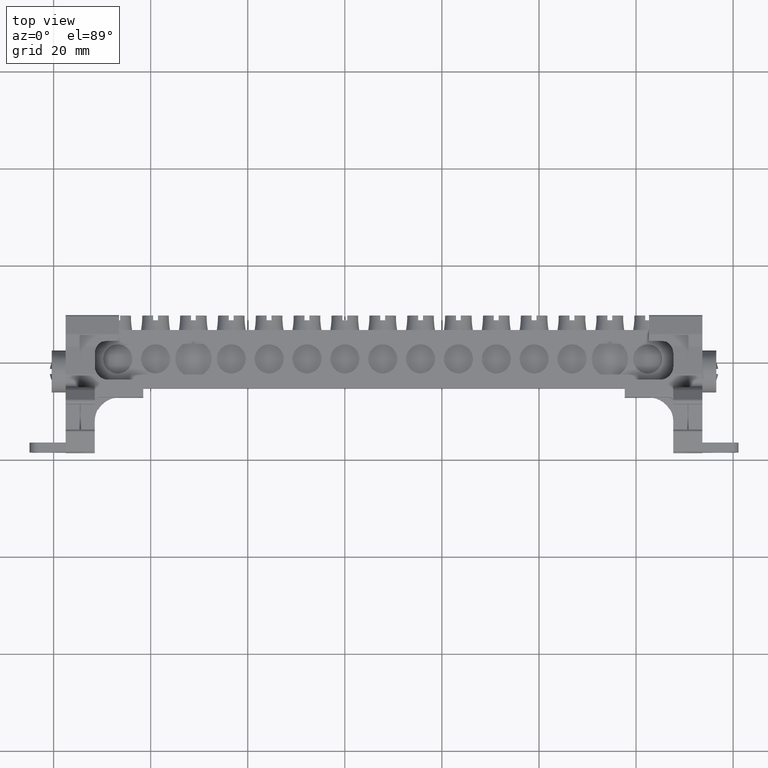
[diagram: clean part render]
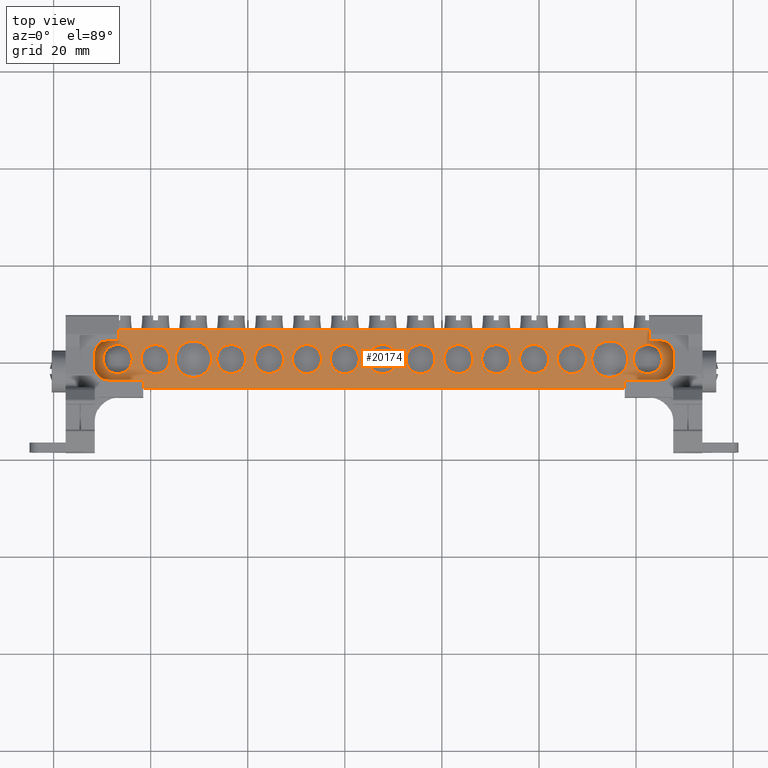
[diagram: same view with one face highlighted and labeled with its STEP entity id]
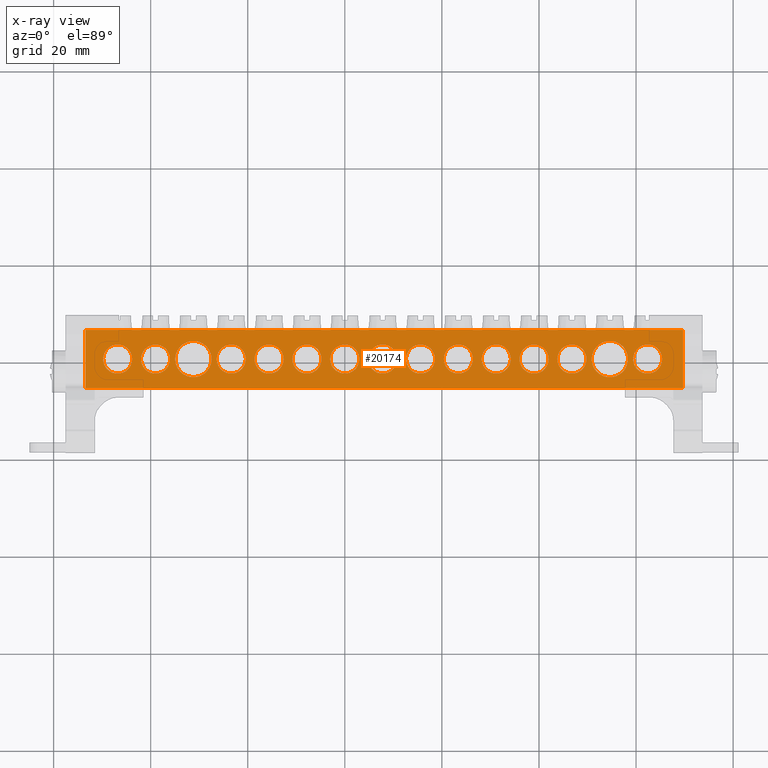
[diagram: x-ray of the same camera — body ghosted, the highlighted face saturated]
A machine part, top view. The second image highlights one B-rep face of the part: STEP entity #20174.
The next image is the same camera in x-ray: the body ghosted, the highlighted face saturated — about 0% of this face is hidden behind the body in this view.
In plain terms, the highlighted planar face has unit normal (0, 0, -1).
Its self-contained STEP definition (entity closure, byte-faithful):
#531 = DIRECTION ( 'NONE',  ( -1.000000000000000000, 0.0000000000000000000, 0.0000000000000000000 ) ) ;
#533 = DIRECTION ( 'NONE',  ( -1.000000000000000000, 0.0000000000000000000, 0.0000000000000000000 ) ) ;
#536 = DIRECTION ( 'NONE',  ( 0.0000000000000000000, 0.0000000000000000000, 1.000000000000000000 ) ) ;
#542 = DIRECTION ( 'NONE',  ( -1.000000000000000000, 0.0000000000000000000, 0.0000000000000000000 ) ) ;
#545 = CARTESIAN_POINT ( 'NONE',  ( -100.0053964936863900, -39.46391012921964900, 99.25723811290720300 ) ) ;
#550 = CARTESIAN_POINT ( 'NONE',  ( -107.8053964936864000, -39.46391012921964900, 99.25723811290720300 ) ) ;
#552 = DIRECTION ( 'NONE',  ( 0.0000000000000000000, 0.0000000000000000000, 1.000000000000000000 ) ) ;
#558 = DIRECTION ( 'NONE',  ( 0.0000000000000000000, 0.0000000000000000000, 1.000000000000000000 ) ) ;
#562 = CARTESIAN_POINT ( 'NONE',  ( -76.60539649368639900, -39.46391012921964900, 99.25723811290720300 ) ) ;
#622 = CARTESIAN_POINT ( 'NONE',  ( -92.20539649368639300, -39.46391012921964900, 99.25723811290720300 ) ) ;
#623 = DIRECTION ( 'NONE',  ( -1.000000000000000000, 0.0000000000000000000, 0.0000000000000000000 ) ) ;
#624 = CARTESIAN_POINT ( 'NONE',  ( -90.70539649368640800, -45.45958989762132100, 99.25723811290720300 ) ) ;
#627 = DIRECTION ( 'NONE',  ( 0.0000000000000000000, 0.0000000000000000000, 1.000000000000000000 ) ) ;
#629 = CARTESIAN_POINT ( 'NONE',  ( -84.40539649368642500, -39.46391012921964900, 99.25723811290720300 ) ) ;
#635 = LINE ( 'NONE', #624, #17459 ) ;
#636 = LINE ( 'NONE', #639, #16426 ) ;
#637 = DIRECTION ( 'NONE',  ( 0.0000000000000000000, 0.0000000000000000000, 1.000000000000000000 ) ) ;
#639 = CARTESIAN_POINT ( 'NONE',  ( -42.33039649368586100, -45.09798989761939900, 99.25723811290720300 ) ) ;
#646 = DIRECTION ( 'NONE',  ( -1.000000000000000000, 0.0000000000000000000, 0.0000000000000000000 ) ) ;
#648 = DIRECTION ( 'NONE',  ( -1.000000000000000000, 0.0000000000000000000, -0.0000000000000000000 ) ) ;
#651 = DIRECTION ( 'NONE',  ( 0.0000000000000000000, 0.0000000000000000000, 1.000000000000000000 ) ) ;
#652 = LINE ( 'NONE', #674, #16445 ) ;
#657 = DIRECTION ( 'NONE',  ( 0.0000000000000000000, 0.0000000000000000000, 1.000000000000000000 ) ) ;
#663 = DIRECTION ( 'NONE',  ( 0.0000000000000000000, 1.000000000000000000, 0.0000000000000000000 ) ) ;
#668 = DIRECTION ( 'NONE',  ( 1.000000000000000000, 0.0000000000000000000, 0.0000000000000000000 ) ) ;
#670 = DIRECTION ( 'NONE',  ( 1.100161628464490100E-014, -1.000000000000000000, 0.0000000000000000000 ) ) ;
#673 = CARTESIAN_POINT ( 'NONE',  ( -45.40539649368639600, -39.46391012921964900, 99.25723811290720300 ) ) ;
#674 = CARTESIAN_POINT ( 'NONE',  ( -153.4553964936864100, -33.46391012921964900, 99.25723811290720300 ) ) ;
#680 = CARTESIAN_POINT ( 'NONE',  ( -53.20539649368640100, -39.46391012921964900, 99.25723811290720300 ) ) ;
#687 = DIRECTION ( 'NONE',  ( 1.000000000000000000, 0.0000000000000000000, 0.0000000000000000000 ) ) ;
#702 = DIRECTION ( 'NONE',  ( 0.0000000000000000000, 0.0000000000000000000, 1.000000000000000000 ) ) ;
#705 = CARTESIAN_POINT ( 'NONE',  ( -139.0053964936863900, -39.46391012921964900, 99.25723811290720300 ) ) ;
#707 = DIRECTION ( 'NONE',  ( 1.000000000000000000, 0.0000000000000000000, 0.0000000000000000000 ) ) ;
#1647 = LINE ( 'NONE', #1648, #17377 ) ;
#1648 = CARTESIAN_POINT ( 'NONE',  ( -141.5303964936866000, -45.09798989762050100, 99.25723811290720300 ) ) ;
#1677 = DIRECTION ( 'NONE',  ( -1.123605221868002000E-014, 1.000000000000000000, 0.0000000000000000000 ) ) ;
#1687 = DIRECTION ( 'NONE',  ( 0.0000000000000000000, 0.0000000000000000000, 1.000000000000000000 ) ) ;
#1701 = CARTESIAN_POINT ( 'NONE',  ( -100.0053964936863900, -39.46391012921964900, 99.25723811290720300 ) ) ;
#1702 = DIRECTION ( 'NONE',  ( -1.000000000000000000, 0.0000000000000000000, 0.0000000000000000000 ) ) ;
#1715 = DIRECTION ( 'NONE',  ( 0.0000000000000000000, 0.0000000000000000000, 1.000000000000000000 ) ) ;
#1725 = CARTESIAN_POINT ( 'NONE',  ( -107.8053964936864000, -39.46391012921964900, 99.25723811290720300 ) ) ;
#1733 = DIRECTION ( 'NONE',  ( 0.0000000000000000000, 0.0000000000000000000, 1.000000000000000000 ) ) ;
#1736 = DIRECTION ( 'NONE',  ( -1.000000000000000000, 0.0000000000000000000, 0.0000000000000000000 ) ) ;
#1747 = CARTESIAN_POINT ( 'NONE',  ( -76.60539649368639900, -39.46391012921964900, 99.25723811290720300 ) ) ;
#1748 = DIRECTION ( 'NONE',  ( 0.0000000000000000000, 0.0000000000000000000, 1.000000000000000000 ) ) ;
#1750 = DIRECTION ( 'NONE',  ( -1.000000000000000000, 0.0000000000000000000, 0.0000000000000000000 ) ) ;
#1752 = CARTESIAN_POINT ( 'NONE',  ( -53.20539649368640100, -39.46391012921964900, 99.25723811290720300 ) ) ;
#1770 = DIRECTION ( 'NONE',  ( 0.0000000000000000000, 0.0000000000000000000, 1.000000000000000000 ) ) ;
#1775 = CARTESIAN_POINT ( 'NONE',  ( -37.60539649368644200, -39.46391012921964900, 99.25723811290720300 ) ) ;
#1780 = DIRECTION ( 'NONE',  ( 1.000000000000000000, 0.0000000000000000000, 0.0000000000000000000 ) ) ;
#1782 = DIRECTION ( 'NONE',  ( 1.000000000000000000, 0.0000000000000000000, 0.0000000000000000000 ) ) ;
#1786 = DIRECTION ( 'NONE',  ( 0.0000000000000000000, 0.0000000000000000000, 1.000000000000000000 ) ) ;
#1802 = DIRECTION ( 'NONE',  ( 0.0000000000000000000, 0.0000000000000000000, 1.000000000000000000 ) ) ;
#1816 = CARTESIAN_POINT ( 'NONE',  ( -84.40539649368642500, -39.46391012921964900, 99.25723811290720300 ) ) ;
#1818 = DIRECTION ( 'NONE',  ( -1.000000000000000000, 0.0000000000000000000, 0.0000000000000000000 ) ) ;
#1839 = DIRECTION ( 'NONE',  ( 1.000000000000000000, 0.0000000000000000000, 0.0000000000000000000 ) ) ;
#1850 = DIRECTION ( 'NONE',  ( -1.000000000000000000, 0.0000000000000000000, 0.0000000000000000000 ) ) ;
#1858 = DIRECTION ( 'NONE',  ( 0.0000000000000000000, 0.0000000000000000000, 1.000000000000000000 ) ) ;
#1859 = CARTESIAN_POINT ( 'NONE',  ( -45.40539649368639600, -39.46391012921964900, 99.25723811290720300 ) ) ;
#1866 = DIRECTION ( 'NONE',  ( 0.0000000000000000000, 0.0000000000000000000, 1.000000000000000000 ) ) ;
#1871 = CARTESIAN_POINT ( 'NONE',  ( -115.6053964936864000, -39.46391012921964900, 99.25723811290720300 ) ) ;
#2739 = DIRECTION ( 'NONE',  ( 0.0000000000000000000, 0.0000000000000000000, 1.000000000000000000 ) ) ;
#2740 = DIRECTION ( 'NONE',  ( 1.000000000000000000, 0.0000000000000000000, 0.0000000000000000000 ) ) ;
#2745 = CARTESIAN_POINT ( 'NONE',  ( -146.8053964936864300, -39.46391012921964900, 99.25723811290720300 ) ) ;
#3063 = CARTESIAN_POINT ( 'NONE',  ( -146.8053964936864300, -39.46391012921964900, 99.25723811290720300 ) ) ;
#3072 = CARTESIAN_POINT ( 'NONE',  ( -90.70539649368640800, -45.45958989762008400, 99.25723811290720300 ) ) ;
#3074 = CARTESIAN_POINT ( 'NONE',  ( -61.00539649368639800, -39.46391012921964900, 99.25723811290720300 ) ) ;
#3076 = DIRECTION ( 'NONE',  ( 0.0000000000000000000, 0.0000000000000000000, 1.000000000000000000 ) ) ;
#3077 = DIRECTION ( 'NONE',  ( -1.000000000000000000, 0.0000000000000000000, 0.0000000000000000000 ) ) ;
#3082 = LINE ( 'NONE', #3072, #25649 ) ;
#3086 = DIRECTION ( 'NONE',  ( 1.000000000000000000, 0.0000000000000000000, 0.0000000000000000000 ) ) ;
#3095 = DIRECTION ( 'NONE',  ( 0.0000000000000000000, 0.0000000000000000000, 1.000000000000000000 ) ) ;
#3098 = DIRECTION ( 'NONE',  ( -1.000000000000000000, 0.0000000000000000000, -0.0000000000000000000 ) ) ;
#3118 = CARTESIAN_POINT ( 'NONE',  ( -90.70539649368640800, -33.46391012921964900, 99.25723811290720300 ) ) ;
#3132 = DIRECTION ( 'NONE',  ( 1.000000000000000000, -0.0000000000000000000, 0.0000000000000000000 ) ) ;
#3136 = LINE ( 'NONE', #3118, #25153 ) ;
#3149 = CARTESIAN_POINT ( 'NONE',  ( -30.30539649368639500, -33.46391012921964900, 99.25723811290720300 ) ) ;
#3158 = CARTESIAN_POINT ( 'NONE',  ( -37.60539649368644200, -39.46391012921964900, 99.25723811290720300 ) ) ;
#3159 = CARTESIAN_POINT ( 'NONE',  ( -131.2053964936864400, -39.46391012921964900, 99.25723811290720300 ) ) ;
#3168 = DIRECTION ( 'NONE',  ( 0.0000000000000000000, 0.0000000000000000000, 1.000000000000000000 ) ) ;
#3171 = DIRECTION ( 'NONE',  ( 1.000000000000000000, 0.0000000000000000000, 0.0000000000000000000 ) ) ;
#3179 = DIRECTION ( 'NONE',  ( 0.0000000000000000000, 0.0000000000000000000, 1.000000000000000000 ) ) ;
#3180 = DIRECTION ( 'NONE',  ( 1.000000000000000000, 0.0000000000000000000, 0.0000000000000000000 ) ) ;
#3188 = LINE ( 'NONE', #3149, #25138 ) ;
#3221 = DIRECTION ( 'NONE',  ( -1.000000000000000000, 0.0000000000000000000, 0.0000000000000000000 ) ) ;
#3225 = CARTESIAN_POINT ( 'NONE',  ( -68.80539649368640200, -39.46391012921964900, 99.25723811290720300 ) ) ;
#3236 = DIRECTION ( 'NONE',  ( 0.0000000000000000000, 0.0000000000000000000, 1.000000000000000000 ) ) ;
#3238 = DIRECTION ( 'NONE',  ( -0.0000000000000000000, -1.000000000000000000, -0.0000000000000000000 ) ) ;
#3244 = LINE ( 'NONE', #3267, #25176 ) ;
#3252 = DIRECTION ( 'NONE',  ( -1.000000000000000000, 0.0000000000000000000, -0.0000000000000000000 ) ) ;
#3267 = CARTESIAN_POINT ( 'NONE',  ( -90.70539649368640800, -45.46391012921959900, 99.25723811290720300 ) ) ;
#3426 = DIRECTION ( 'NONE',  ( 0.0000000000000000000, 0.0000000000000000000, 1.000000000000000000 ) ) ;
#3440 = DIRECTION ( 'NONE',  ( -1.000000000000000000, 0.0000000000000000000, 0.0000000000000000000 ) ) ;
#3441 = DIRECTION ( 'NONE',  ( 0.0000000000000000000, 0.0000000000000000000, 1.000000000000000000 ) ) ;
#3448 = CARTESIAN_POINT ( 'NONE',  ( -123.4053964936864000, -39.46391012921964900, 99.25723811290720300 ) ) ;
#3466 = CARTESIAN_POINT ( 'NONE',  ( -115.6053964936864000, -39.46391012921964900, 99.25723811290720300 ) ) ;
#3474 = DIRECTION ( 'NONE',  ( -1.000000000000000000, 0.0000000000000000000, 0.0000000000000000000 ) ) ;
#5758 = DIRECTION ( 'NONE',  ( 1.000000000000000000, 0.0000000000000000000, 0.0000000000000000000 ) ) ;
#5767 = DIRECTION ( 'NONE',  ( 1.000000000000000000, 0.0000000000000000000, 0.0000000000000000000 ) ) ;
#5768 = CARTESIAN_POINT ( 'NONE',  ( -131.2053964936864400, -39.46391012921964900, 99.25723811290720300 ) ) ;
#5769 = DIRECTION ( 'NONE',  ( 0.0000000000000000000, 0.0000000000000000000, 1.000000000000000000 ) ) ;
#5806 = DIRECTION ( 'NONE',  ( -1.000000000000000000, 0.0000000000000000000, 0.0000000000000000000 ) ) ;
#5822 = DIRECTION ( 'NONE',  ( 0.0000000000000000000, 0.0000000000000000000, 1.000000000000000000 ) ) ;
#5829 = CARTESIAN_POINT ( 'NONE',  ( -68.80539649368640200, -39.46391012921964900, 99.25723811290720300 ) ) ;
#5963 = FACE_BOUND ( 'NONE', #20440, .T. ) ;
#8258 = CARTESIAN_POINT ( 'NONE',  ( -153.4553964936864100, -45.45958989762142000, 99.25723811290720300 ) ) ;
#8262 = CARTESIAN_POINT ( 'NONE',  ( -141.5303964936866000, -45.45958989762131400, 99.25723811290720300 ) ) ;
#8271 = CARTESIAN_POINT ( 'NONE',  ( -153.4553964936864100, -33.46391012921964900, 99.25723811290720300 ) ) ;
#8272 = CARTESIAN_POINT ( 'NONE',  ( -42.33039649368585300, -45.45958989762020500, 99.25723811290720300 ) ) ;
#8275 = CARTESIAN_POINT ( 'NONE',  ( -42.33039649368586100, -45.46391012921959900, 99.25723811290720300 ) ) ;
#8277 = CARTESIAN_POINT ( 'NONE',  ( -30.30539649368639500, -45.45958989761987800, 99.25723811290720300 ) ) ;
#8283 = CARTESIAN_POINT ( 'NONE',  ( -141.5303964936866000, -45.46391012921959900, 99.25723811290720300 ) ) ;
#8291 = CARTESIAN_POINT ( 'NONE',  ( -30.30539649368639500, -33.46391012921964900, 99.25723811290720300 ) ) ;
#9510 = CARTESIAN_POINT ( 'NONE',  ( -139.0053964936863900, -39.46391012921964900, 99.25723811290720300 ) ) ;
#10473 = DIRECTION ( 'NONE',  ( -1.000000000000000000, 0.0000000000000000000, 0.0000000000000000000 ) ) ;
#10505 = DIRECTION ( 'NONE',  ( 0.0000000000000000000, 0.0000000000000000000, 1.000000000000000000 ) ) ;
#10509 = CARTESIAN_POINT ( 'NONE',  ( -92.20539649368639300, -39.46391012921964900, 99.25723811290720300 ) ) ;
#10525 = DIRECTION ( 'NONE',  ( -1.000000000000000000, 0.0000000000000000000, 0.0000000000000000000 ) ) ;
#10545 = DIRECTION ( 'NONE',  ( 0.0000000000000000000, 0.0000000000000000000, 1.000000000000000000 ) ) ;
#10548 = DIRECTION ( 'NONE',  ( 0.0000000000000000000, 0.0000000000000000000, 1.000000000000000000 ) ) ;
#10551 = DIRECTION ( 'NONE',  ( -1.000000000000000000, 0.0000000000000000000, 0.0000000000000000000 ) ) ;
#10557 = CARTESIAN_POINT ( 'NONE',  ( -61.00539649368639800, -39.46391012921964900, 99.25723811290720300 ) ) ;
#10560 = CARTESIAN_POINT ( 'NONE',  ( -123.4053964936864000, -39.46391012921964900, 99.25723811290720300 ) ) ;
#12166 = VERTEX_POINT ( 'NONE', #8271 ) ;
#12170 = VERTEX_POINT ( 'NONE', #8272 ) ;
#12180 = VERTEX_POINT ( 'NONE', #8283 ) ;
#12191 = VERTEX_POINT ( 'NONE', #8277 ) ;
#12202 = VERTEX_POINT ( 'NONE', #8258 ) ;
#12205 = VERTEX_POINT ( 'NONE', #8262 ) ;
#12206 = VERTEX_POINT ( 'NONE', #8275 ) ;
#12213 = VERTEX_POINT ( 'NONE', #8291 ) ;
#12681 = EDGE_CURVE ( 'NONE', #12191, #12170, #3082, .T. ) ;
#12687 = EDGE_CURVE ( 'NONE', #21313, #21290, #25656, .T. ) ;
#12690 = EDGE_CURVE ( 'NONE', #21335, #21356, #25670, .T. ) ;
#12705 = EDGE_CURVE ( 'NONE', #12166, #12213, #3136, .T. ) ;
#12708 = EDGE_CURVE ( 'NONE', #21334, #21331, #25126, .T. ) ;
#12714 = EDGE_CURVE ( 'NONE', #21291, #21338, #25147, .T. ) ;
#12722 = EDGE_CURVE ( 'NONE', #12213, #12191, #3188, .T. ) ;
#12730 = EDGE_CURVE ( 'NONE', #21293, #21323, #25151, .T. ) ;
#12743 = EDGE_CURVE ( 'NONE', #12206, #12180, #3244, .T. ) ;
#12769 = EDGE_CURVE ( 'NONE', #21250, #21252, #25201, .T. ) ;
#12772 = EDGE_CURVE ( 'NONE', #21337, #21285, #25209, .T. ) ;
#12937 = EDGE_CURVE ( 'NONE', #21346, #21276, #25369, .T. ) ;
#12950 = EDGE_CURVE ( 'NONE', #21252, #21250, #25413, .T. ) ;
#12952 = EDGE_CURVE ( 'NONE', #21356, #21335, #25470, .T. ) ;
#12957 = EDGE_CURVE ( 'NONE', #21288, #21289, #25438, .T. ) ;
#12961 = EDGE_CURVE ( 'NONE', #21266, #21294, #25445, .T. ) ;
#12972 = EDGE_CURVE ( 'NONE', #21331, #21334, #25454, .T. ) ;
#12978 = EDGE_CURVE ( 'NONE', #21299, #21296, #25425, .T. ) ;
#12980 = EDGE_CURVE ( 'NONE', #21282, #21232, #25428, .T. ) ;
#12993 = EDGE_CURVE ( 'NONE', #21265, #21243, #25537, .T. ) ;
#12996 = EDGE_CURVE ( 'NONE', #21285, #21337, #25522, .T. ) ;
#12999 = EDGE_CURVE ( 'NONE', #21301, #21315, #25491, .T. ) ;
#13100 = EDGE_CURVE ( 'NONE', #12180, #12205, #1647, .T. ) ;
#13134 = EDGE_CURVE ( 'NONE', #21232, #21282, #17409, .T. ) ;
#13135 = EDGE_CURVE ( 'NONE', #21289, #21288, #17385, .T. ) ;
#13138 = EDGE_CURVE ( 'NONE', #21294, #21266, #17413, .T. ) ;
#13167 = EDGE_CURVE ( 'NONE', #21243, #21265, #17425, .T. ) ;
#13168 = EDGE_CURVE ( 'NONE', #12205, #12202, #635, .T. ) ;
#13170 = EDGE_CURVE ( 'NONE', #21276, #21346, #17448, .T. ) ;
#13173 = EDGE_CURVE ( 'NONE', #21296, #21299, #17428, .T. ) ;
#13176 = EDGE_CURVE ( 'NONE', #12170, #12206, #636, .T. ) ;
#13179 = EDGE_CURVE ( 'NONE', #21315, #21301, #16440, .T. ) ;
#13181 = EDGE_CURVE ( 'NONE', #12202, #12166, #652, .T. ) ;
#13188 = EDGE_CURVE ( 'NONE', #21339, #21317, #16418, .T. ) ;
#13641 = FACE_BOUND ( 'NONE', #20433, .T. ) ;
#13648 = FACE_BOUND ( 'NONE', #20498, .T. ) ;
#13651 = FACE_OUTER_BOUND ( 'NONE', #20494, .T. ) ;
#13654 = DIRECTION ( 'NONE',  ( 0.0000000000000000000, 0.0000000000000000000, -1.000000000000000000 ) ) ;
#13656 = FACE_BOUND ( 'NONE', #20442, .T. ) ;
#13657 = FACE_BOUND ( 'NONE', #20480, .T. ) ;
#13661 = FACE_BOUND ( 'NONE', #20513, .T. ) ;
#13663 = DIRECTION ( 'NONE',  ( -1.000000000000000000, 0.0000000000000000000, -0.0000000000000000000 ) ) ;
#13664 = FACE_BOUND ( 'NONE', #20492, .T. ) ;
#13665 = CARTESIAN_POINT ( 'NONE',  ( -90.70539649368640800, -33.46391012921964900, 99.25723811290720300 ) ) ;
#13667 = FACE_BOUND ( 'NONE', #20482, .T. ) ;
#13672 = PLANE ( 'NONE',  #26189 ) ;
#13674 = FACE_BOUND ( 'NONE', #20514, .T. ) ;
#13678 = FACE_BOUND ( 'NONE', #20501, .T. ) ;
#13681 = FACE_BOUND ( 'NONE', #20435, .T. ) ;
#13683 = FACE_BOUND ( 'NONE', #20523, .T. ) ;
#13691 = FACE_BOUND ( 'NONE', #20510, .T. ) ;
#14216 = CARTESIAN_POINT ( 'NONE',  ( -118.6053964936864000, -39.46391012921964900, 99.25723811290720300 ) ) ;
#14234 = CARTESIAN_POINT ( 'NONE',  ( -87.40539649368642500, -39.46391012921964900, 99.25723811290720300 ) ) ;
#14237 = CARTESIAN_POINT ( 'NONE',  ( -97.00539649368639100, -39.46391012921964900, 99.25723811290720300 ) ) ;
#14238 = CARTESIAN_POINT ( 'NONE',  ( -149.8053964936864300, -39.46391012921964900, 99.25723811290720300 ) ) ;
#14246 = CARTESIAN_POINT ( 'NONE',  ( -73.60539649368639900, -39.46391012921964900, 99.25723811290720300 ) ) ;
#14253 = CARTESIAN_POINT ( 'NONE',  ( -126.4053964936864000, -39.46391012921964900, 99.25723811290720300 ) ) ;
#14254 = CARTESIAN_POINT ( 'NONE',  ( -110.8053964936864200, -39.46391012921964900, 99.25723811290720300 ) ) ;
#14264 = CARTESIAN_POINT ( 'NONE',  ( -120.4053964936864000, -39.46391012921964900, 99.25723811290720300 ) ) ;
#14265 = CARTESIAN_POINT ( 'NONE',  ( -103.0053964936863900, -39.46391012921964900, 99.25723811290720300 ) ) ;
#14268 = CARTESIAN_POINT ( 'NONE',  ( -81.40539649368641100, -39.46391012921964900, 99.25723811290720300 ) ) ;
#14277 = CARTESIAN_POINT ( 'NONE',  ( -89.20539649368639300, -39.46391012921964900, 99.25723811290720300 ) ) ;
#14279 = CARTESIAN_POINT ( 'NONE',  ( -79.60539649368639900, -39.46391012921964900, 99.25723811290720300 ) ) ;
#14287 = CARTESIAN_POINT ( 'NONE',  ( -41.65539649368639600, -39.46391012921964900, 99.25723811290720300 ) ) ;
#14289 = CARTESIAN_POINT ( 'NONE',  ( -34.60539649368644200, -39.46391012921964900, 99.25723811290720300 ) ) ;
#14292 = CARTESIAN_POINT ( 'NONE',  ( -58.00539649368639800, -39.46391012921964900, 99.25723811290720300 ) ) ;
#14299 = CARTESIAN_POINT ( 'NONE',  ( -95.20539649368639300, -39.46391012921964900, 99.25723811290720300 ) ) ;
#14300 = CARTESIAN_POINT ( 'NONE',  ( -49.15539649368640300, -39.46391012921964900, 99.25723811290720300 ) ) ;
#14307 = CARTESIAN_POINT ( 'NONE',  ( -56.20539649368640100, -39.46391012921964900, 99.25723811290720300 ) ) ;
#14311 = CARTESIAN_POINT ( 'NONE',  ( -143.8053964936864300, -39.46391012921964900, 99.25723811290720300 ) ) ;
#14314 = CARTESIAN_POINT ( 'NONE',  ( -142.0053964936863900, -39.46391012921964900, 99.25723811290720300 ) ) ;
#14316 = CARTESIAN_POINT ( 'NONE',  ( -71.80539649368640200, -39.46391012921964900, 99.25723811290720300 ) ) ;
#14318 = CARTESIAN_POINT ( 'NONE',  ( -112.6053964936864000, -39.46391012921964900, 99.25723811290720300 ) ) ;
#14319 = CARTESIAN_POINT ( 'NONE',  ( -127.4553964936864200, -39.46391012921964900, 99.25723811290720300 ) ) ;
#14321 = CARTESIAN_POINT ( 'NONE',  ( -134.9553964936864400, -39.46391012921964900, 99.25723811290720300 ) ) ;
#14323 = CARTESIAN_POINT ( 'NONE',  ( -65.80539649368640200, -39.46391012921964900, 99.25723811290720300 ) ) ;
#14327 = CARTESIAN_POINT ( 'NONE',  ( -40.60539649368644900, -39.46391012921964900, 99.25723811290720300 ) ) ;
#14336 = CARTESIAN_POINT ( 'NONE',  ( -50.20539649368639300, -39.46391012921964900, 99.25723811290720300 ) ) ;
#14339 = CARTESIAN_POINT ( 'NONE',  ( -136.0053964936863900, -39.46391012921964900, 99.25723811290720300 ) ) ;
#14343 = CARTESIAN_POINT ( 'NONE',  ( -104.8053964936864000, -39.46391012921964900, 99.25723811290720300 ) ) ;
#14362 = CARTESIAN_POINT ( 'NONE',  ( -64.00539649368640500, -39.46391012921964900, 99.25723811290720300 ) ) ;
#16418 = CIRCLE ( 'NONE', #16453, 3.000000000000002700 ) ;
#16426 = VECTOR ( 'NONE', #670, 1000.000000000000000 ) ;
#16433 = AXIS2_PLACEMENT_3D ( 'NONE', #673, #657, #687 ) ;
#16440 = CIRCLE ( 'NONE', #16433, 3.750000000000003600 ) ;
#16445 = VECTOR ( 'NONE', #663, 1000.000000000000000 ) ;
#16453 = AXIS2_PLACEMENT_3D ( 'NONE', #705, #702, #707 ) ;
#17039 = CIRCLE ( 'NONE', #17066, 3.750000000000003600 ) ;
#17045 = AXIS2_PLACEMENT_3D ( 'NONE', #2745, #2739, #2740 ) ;
#17047 = CIRCLE ( 'NONE', #17045, 3.000000000000002700 ) ;
#17049 = CIRCLE ( 'NONE', #17056, 3.000000000000002700 ) ;
#17056 = AXIS2_PLACEMENT_3D ( 'NONE', #9510, #1687, #5767 ) ;
#17059 = CIRCLE ( 'NONE', #17073, 3.000000000000002700 ) ;
#17066 = AXIS2_PLACEMENT_3D ( 'NONE', #5768, #5769, #5758 ) ;
#17073 = AXIS2_PLACEMENT_3D ( 'NONE', #5829, #5822, #5806 ) ;
#17377 = VECTOR ( 'NONE', #1677, 1000.000000000000000 ) ;
#17385 = CIRCLE ( 'NONE', #17408, 3.000000000000002700 ) ;
#17391 = AXIS2_PLACEMENT_3D ( 'NONE', #562, #536, #542 ) ;
#17408 = AXIS2_PLACEMENT_3D ( 'NONE', #545, #552, #531 ) ;
#17409 = CIRCLE ( 'NONE', #17391, 3.000000000000002700 ) ;
#17413 = CIRCLE ( 'NONE', #17419, 3.000000000000002700 ) ;
#17419 = AXIS2_PLACEMENT_3D ( 'NONE', #550, #558, #533 ) ;
#17425 = CIRCLE ( 'NONE', #17464, 3.000000000000002700 ) ;
#17426 = AXIS2_PLACEMENT_3D ( 'NONE', #622, #627, #623 ) ;
#17428 = CIRCLE ( 'NONE', #17430, 3.000000000000002700 ) ;
#17430 = AXIS2_PLACEMENT_3D ( 'NONE', #680, #651, #668 ) ;
#17448 = CIRCLE ( 'NONE', #17426, 3.000000000000002700 ) ;
#17459 = VECTOR ( 'NONE', #648, 1000.000000000000000 ) ;
#17464 = AXIS2_PLACEMENT_3D ( 'NONE', #629, #637, #646 ) ;
#18143 = EDGE_CURVE ( 'NONE', #21290, #21313, #17047, .T. ) ;
#18152 = EDGE_CURVE ( 'NONE', #21317, #21339, #17049, .T. ) ;
#18165 = EDGE_CURVE ( 'NONE', #21338, #21291, #17039, .T. ) ;
#18210 = EDGE_CURVE ( 'NONE', #21323, #21293, #17059, .T. ) ;
#18749 = ORIENTED_EDGE ( 'NONE', *, *, #13170, .F. ) ;
#18750 = ORIENTED_EDGE ( 'NONE', *, *, #12708, .F. ) ;
#18751 = ORIENTED_EDGE ( 'NONE', *, *, #12999, .F. ) ;
#18752 = ORIENTED_EDGE ( 'NONE', *, *, #18143, .F. ) ;
#18753 = ORIENTED_EDGE ( 'NONE', *, *, #12950, .F. ) ;
#18756 = ORIENTED_EDGE ( 'NONE', *, *, #12972, .F. ) ;
#18760 = ORIENTED_EDGE ( 'NONE', *, *, #12957, .F. ) ;
#18761 = ORIENTED_EDGE ( 'NONE', *, *, #13100, .F. ) ;
#18762 = ORIENTED_EDGE ( 'NONE', *, *, #18210, .F. ) ;
#18763 = ORIENTED_EDGE ( 'NONE', *, *, #12772, .F. ) ;
#18765 = ORIENTED_EDGE ( 'NONE', *, *, #12996, .F. ) ;
#18768 = ORIENTED_EDGE ( 'NONE', *, *, #12769, .F. ) ;
#18769 = ORIENTED_EDGE ( 'NONE', *, *, #13138, .F. ) ;
#18771 = ORIENTED_EDGE ( 'NONE', *, *, #12993, .F. ) ;
#18772 = ORIENTED_EDGE ( 'NONE', *, *, #13134, .F. ) ;
#18773 = ORIENTED_EDGE ( 'NONE', *, *, #13167, .F. ) ;
#18777 = ORIENTED_EDGE ( 'NONE', *, *, #13135, .F. ) ;
#18780 = ORIENTED_EDGE ( 'NONE', *, *, #12980, .F. ) ;
#18782 = ORIENTED_EDGE ( 'NONE', *, *, #12978, .F. ) ;
#18785 = ORIENTED_EDGE ( 'NONE', *, *, #12952, .F. ) ;
#18788 = ORIENTED_EDGE ( 'NONE', *, *, #12961, .F. ) ;
#18794 = ORIENTED_EDGE ( 'NONE', *, *, #13173, .F. ) ;
#18796 = ORIENTED_EDGE ( 'NONE', *, *, #12937, .F. ) ;
#18798 = ORIENTED_EDGE ( 'NONE', *, *, #13179, .F. ) ;
#18801 = ORIENTED_EDGE ( 'NONE', *, *, #12687, .F. ) ;
#18805 = ORIENTED_EDGE ( 'NONE', *, *, #18165, .F. ) ;
#18813 = ORIENTED_EDGE ( 'NONE', *, *, #12681, .F. ) ;
#18823 = ORIENTED_EDGE ( 'NONE', *, *, #18152, .F. ) ;
#18826 = ORIENTED_EDGE ( 'NONE', *, *, #13176, .F. ) ;
#18827 = ORIENTED_EDGE ( 'NONE', *, *, #12743, .F. ) ;
#18831 = ORIENTED_EDGE ( 'NONE', *, *, #13168, .F. ) ;
#18833 = ORIENTED_EDGE ( 'NONE', *, *, #12714, .F. ) ;
#18844 = ORIENTED_EDGE ( 'NONE', *, *, #12730, .F. ) ;
#18852 = ORIENTED_EDGE ( 'NONE', *, *, #12705, .F. ) ;
#18853 = ORIENTED_EDGE ( 'NONE', *, *, #12722, .F. ) ;
#18854 = ORIENTED_EDGE ( 'NONE', *, *, #13181, .F. ) ;
#18857 = ORIENTED_EDGE ( 'NONE', *, *, #13188, .F. ) ;
#18859 = ORIENTED_EDGE ( 'NONE', *, *, #12690, .F. ) ;
#20174 = ADVANCED_FACE ( 'NONE', ( #24577, #24101, #5963, #13656, #13683, #13657, #13641, #13648, #13691, #13667, #13674, #13661, #13664, #13681, #13678, #13651 ), #13672, .F. ) ;
#20360 = EDGE_LOOP ( 'NONE', ( #18765, #18763 ) ) ;
#20433 = EDGE_LOOP ( 'NONE', ( #18780, #18772 ) ) ;
#20435 = EDGE_LOOP ( 'NONE', ( #18801, #18752 ) ) ;
#20440 = EDGE_LOOP ( 'NONE', ( #18788, #18769 ) ) ;
#20442 = EDGE_LOOP ( 'NONE', ( #18760, #18777 ) ) ;
#20480 = EDGE_LOOP ( 'NONE', ( #18771, #18773 ) ) ;
#20482 = EDGE_LOOP ( 'NONE', ( #18750, #18756 ) ) ;
#20492 = EDGE_LOOP ( 'NONE', ( #18857, #18823 ) ) ;
#20494 = EDGE_LOOP ( 'NONE', ( #18813, #18853, #18852, #18854, #18831, #18761, #18827, #18826 ) ) ;
#20498 = EDGE_LOOP ( 'NONE', ( #18794, #18782 ) ) ;
#20501 = EDGE_LOOP ( 'NONE', ( #18833, #18805 ) ) ;
#20510 = EDGE_LOOP ( 'NONE', ( #18798, #18751 ) ) ;
#20513 = EDGE_LOOP ( 'NONE', ( #18762, #18844 ) ) ;
#20514 = EDGE_LOOP ( 'NONE', ( #18785, #18859 ) ) ;
#20519 = EDGE_LOOP ( 'NONE', ( #18753, #18768 ) ) ;
#20523 = EDGE_LOOP ( 'NONE', ( #18796, #18749 ) ) ;
#21232 = VERTEX_POINT ( 'NONE', #14246 ) ;
#21243 = VERTEX_POINT ( 'NONE', #14268 ) ;
#21250 = VERTEX_POINT ( 'NONE', #14264 ) ;
#21252 = VERTEX_POINT ( 'NONE', #14253 ) ;
#21265 = VERTEX_POINT ( 'NONE', #14234 ) ;
#21266 = VERTEX_POINT ( 'NONE', #14254 ) ;
#21276 = VERTEX_POINT ( 'NONE', #14277 ) ;
#21282 = VERTEX_POINT ( 'NONE', #14279 ) ;
#21285 = VERTEX_POINT ( 'NONE', #14216 ) ;
#21288 = VERTEX_POINT ( 'NONE', #14265 ) ;
#21289 = VERTEX_POINT ( 'NONE', #14237 ) ;
#21290 = VERTEX_POINT ( 'NONE', #14238 ) ;
#21291 = VERTEX_POINT ( 'NONE', #14319 ) ;
#21293 = VERTEX_POINT ( 'NONE', #14323 ) ;
#21294 = VERTEX_POINT ( 'NONE', #14343 ) ;
#21296 = VERTEX_POINT ( 'NONE', #14336 ) ;
#21299 = VERTEX_POINT ( 'NONE', #14307 ) ;
#21301 = VERTEX_POINT ( 'NONE', #14300 ) ;
#21313 = VERTEX_POINT ( 'NONE', #14311 ) ;
#21315 = VERTEX_POINT ( 'NONE', #14287 ) ;
#21317 = VERTEX_POINT ( 'NONE', #14314 ) ;
#21323 = VERTEX_POINT ( 'NONE', #14316 ) ;
#21331 = VERTEX_POINT ( 'NONE', #14327 ) ;
#21334 = VERTEX_POINT ( 'NONE', #14289 ) ;
#21335 = VERTEX_POINT ( 'NONE', #14292 ) ;
#21337 = VERTEX_POINT ( 'NONE', #14318 ) ;
#21338 = VERTEX_POINT ( 'NONE', #14321 ) ;
#21339 = VERTEX_POINT ( 'NONE', #14339 ) ;
#21346 = VERTEX_POINT ( 'NONE', #14299 ) ;
#21356 = VERTEX_POINT ( 'NONE', #14362 ) ;
#24101 = FACE_BOUND ( 'NONE', #20360, .T. ) ;
#24577 = FACE_BOUND ( 'NONE', #20519, .T. ) ;
#25126 = CIRCLE ( 'NONE', #25155, 3.000000000000002700 ) ;
#25138 = VECTOR ( 'NONE', #3238, 1000.000000000000000 ) ;
#25141 = AXIS2_PLACEMENT_3D ( 'NONE', #3225, #3236, #3221 ) ;
#25147 = CIRCLE ( 'NONE', #25167, 3.750000000000003600 ) ;
#25151 = CIRCLE ( 'NONE', #25141, 3.000000000000002700 ) ;
#25153 = VECTOR ( 'NONE', #3132, 1000.000000000000000 ) ;
#25155 = AXIS2_PLACEMENT_3D ( 'NONE', #3158, #3168, #3171 ) ;
#25167 = AXIS2_PLACEMENT_3D ( 'NONE', #3159, #3179, #3180 ) ;
#25176 = VECTOR ( 'NONE', #3252, 1000.000000000000000 ) ;
#25201 = CIRCLE ( 'NONE', #25210, 3.000000000000002700 ) ;
#25209 = CIRCLE ( 'NONE', #25228, 3.000000000000002700 ) ;
#25210 = AXIS2_PLACEMENT_3D ( 'NONE', #3448, #3441, #3474 ) ;
#25228 = AXIS2_PLACEMENT_3D ( 'NONE', #3466, #3426, #3440 ) ;
#25366 = AXIS2_PLACEMENT_3D ( 'NONE', #10509, #10505, #10473 ) ;
#25369 = CIRCLE ( 'NONE', #25366, 3.000000000000002700 ) ;
#25413 = CIRCLE ( 'NONE', #25423, 3.000000000000002700 ) ;
#25418 = AXIS2_PLACEMENT_3D ( 'NONE', #10557, #10545, #10525 ) ;
#25423 = AXIS2_PLACEMENT_3D ( 'NONE', #10560, #10548, #10551 ) ;
#25425 = CIRCLE ( 'NONE', #25457, 3.000000000000002700 ) ;
#25428 = CIRCLE ( 'NONE', #25431, 3.000000000000002700 ) ;
#25431 = AXIS2_PLACEMENT_3D ( 'NONE', #1747, #1748, #1750 ) ;
#25438 = CIRCLE ( 'NONE', #25456, 3.000000000000002700 ) ;
#25445 = CIRCLE ( 'NONE', #25453, 3.000000000000002700 ) ;
#25453 = AXIS2_PLACEMENT_3D ( 'NONE', #1725, #1715, #1736 ) ;
#25454 = CIRCLE ( 'NONE', #25455, 3.000000000000002700 ) ;
#25455 = AXIS2_PLACEMENT_3D ( 'NONE', #1775, #1786, #1780 ) ;
#25456 = AXIS2_PLACEMENT_3D ( 'NONE', #1701, #1733, #1702 ) ;
#25457 = AXIS2_PLACEMENT_3D ( 'NONE', #1752, #1770, #1782 ) ;
#25470 = CIRCLE ( 'NONE', #25418, 3.000000000000002700 ) ;
#25491 = CIRCLE ( 'NONE', #25531, 3.750000000000003600 ) ;
#25501 = AXIS2_PLACEMENT_3D ( 'NONE', #1871, #1866, #1850 ) ;
#25521 = AXIS2_PLACEMENT_3D ( 'NONE', #1816, #1802, #1818 ) ;
#25522 = CIRCLE ( 'NONE', #25501, 3.000000000000002700 ) ;
#25531 = AXIS2_PLACEMENT_3D ( 'NONE', #1859, #1858, #1839 ) ;
#25537 = CIRCLE ( 'NONE', #25521, 3.000000000000002700 ) ;
#25623 = AXIS2_PLACEMENT_3D ( 'NONE', #3063, #3095, #3086 ) ;
#25649 = VECTOR ( 'NONE', #3098, 1000.000000000000000 ) ;
#25656 = CIRCLE ( 'NONE', #25623, 3.000000000000002700 ) ;
#25668 = AXIS2_PLACEMENT_3D ( 'NONE', #3074, #3076, #3077 ) ;
#25670 = CIRCLE ( 'NONE', #25668, 3.000000000000002700 ) ;
#26189 = AXIS2_PLACEMENT_3D ( 'NONE', #13665, #13654, #13663 ) ;